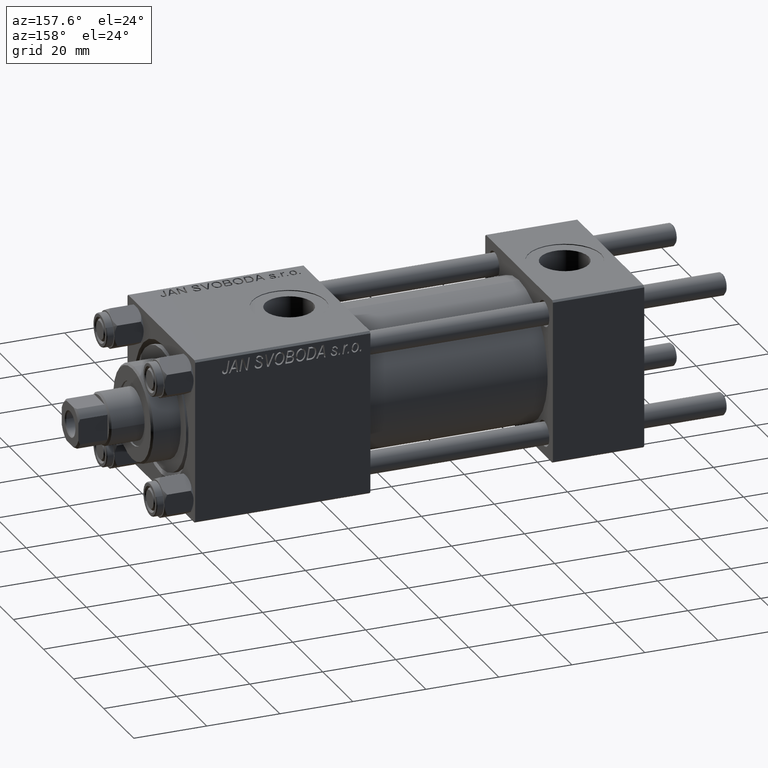
[diagram: clean part render]
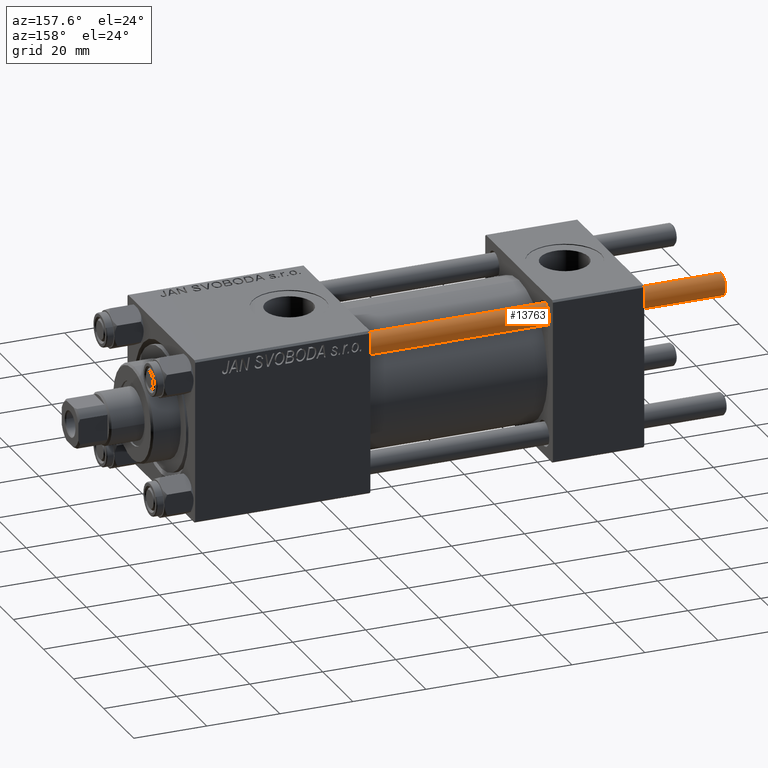
[diagram: same view with one face highlighted and labeled with its STEP entity id]
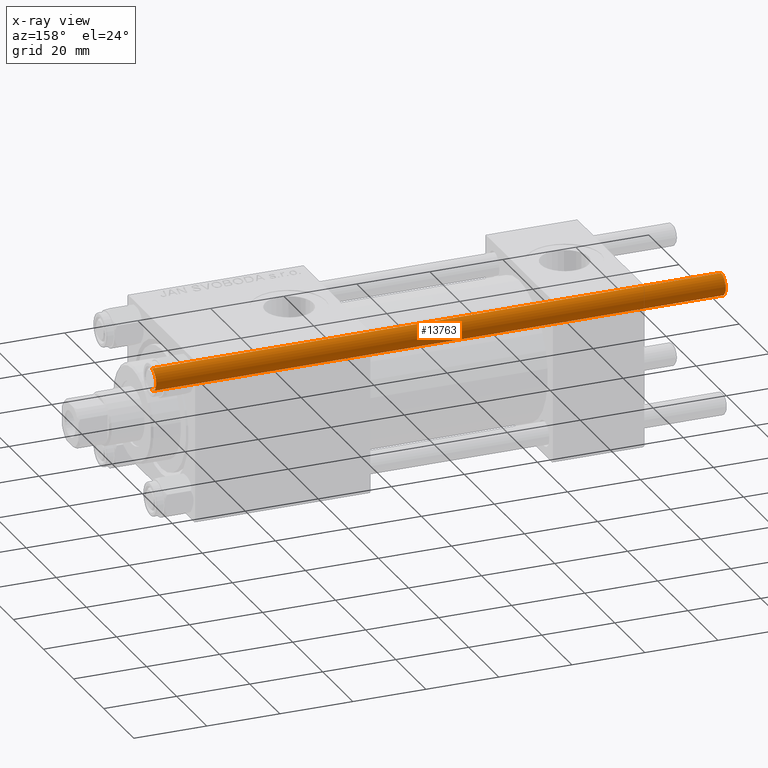
[diagram: x-ray of the same camera — body ghosted, the highlighted face saturated]
A machine part, auxiliary view. The second image highlights one B-rep face of the part: STEP entity #13763.
The next image is the same camera in x-ray: the body ghosted, the highlighted face saturated — about 0% of this face is hidden behind the body in this view.
In plain terms, the highlighted cylindrical surface (edge-blend (fillet) strip) has radius 3 mm, axis along (-1, -0, -0).
Its self-contained STEP definition (entity closure, byte-faithful):
#3506 = DIRECTION ( 'NONE',  ( -1.000000000000000000, 0.000000000000000000, 0.000000000000000000 ) ) ;
#4182 = EDGE_CURVE ( 'NONE', #15021, #20039, #13060, .T. ) ;
#4786 = DIRECTION ( 'NONE',  ( -0.000000000000000000, -0.000000000000000000, 1.000000000000000000 ) ) ;
#9176 = EDGE_CURVE ( 'NONE', #25288, #15021, #40603, .T. ) ;
#10661 = DIRECTION ( 'NONE',  ( 0.000000000000000000, 0.000000000000000000, -1.000000000000000000 ) ) ;
#13060 = LINE ( 'NONE', #29077, #20581 ) ;
#13763 = ADVANCED_FACE ( 'NONE', ( #47843 ), #43904, .T. ) ;
#13927 = EDGE_CURVE ( 'NONE', #20039, #43596, #29737, .T. ) ;
#15021 = VERTEX_POINT ( 'NONE', #22636 ) ;
#20039 = VERTEX_POINT ( 'NONE', #37996 ) ;
#20581 = VECTOR ( 'NONE', #37993, 1000.000000000000000 ) ;
#21593 = EDGE_LOOP ( 'NONE', ( #31031, #36655, #40864, #39213 ) ) ;
#22636 = CARTESIAN_POINT ( 'NONE',  ( 3.000000000000000444, 3.673940397442060361E-16, 156.5000000000000284 ) ) ;
#23060 = CARTESIAN_POINT ( 'NONE',  ( -3.000000000000000444, 0.000000000000000000, 157.0000000000000000 ) ) ;
#23910 = AXIS2_PLACEMENT_3D ( 'NONE', #25251, #4786, #41247 ) ;
#25251 = CARTESIAN_POINT ( 'NONE',  ( 0.000000000000000000, 0.000000000000000000, 0.4999999999999726885 ) ) ;
#25288 = VERTEX_POINT ( 'NONE', #50839 ) ;
#26413 = AXIS2_PLACEMENT_3D ( 'NONE', #35017, #39469, #3506 ) ;
#29077 = CARTESIAN_POINT ( 'NONE',  ( 3.000000000000000444, 3.673940397442060361E-16, 157.0000000000000000 ) ) ;
#29581 = VECTOR ( 'NONE', #42203, 1000.000000000000000 ) ;
#29737 = CIRCLE ( 'NONE', #23910, 3.000000000000000444 ) ;
#29888 = LINE ( 'NONE', #23060, #29581 ) ;
#31031 = ORIENTED_EDGE ( 'NONE', *, *, #9176, .T. ) ;
#35017 = CARTESIAN_POINT ( 'NONE',  ( 0.000000000000000000, 0.000000000000000000, 157.0000000000000000 ) ) ;
#35574 = AXIS2_PLACEMENT_3D ( 'NONE', #51055, #10661, #42672 ) ;
#36655 = ORIENTED_EDGE ( 'NONE', *, *, #4182, .T. ) ;
#37993 = DIRECTION ( 'NONE',  ( -0.000000000000000000, -0.000000000000000000, -1.000000000000000000 ) ) ;
#37996 = CARTESIAN_POINT ( 'NONE',  ( 3.000000000000000444, 3.673940397442060361E-16, 0.4999999999999726885 ) ) ;
#38079 = CARTESIAN_POINT ( 'NONE',  ( -3.000000000000000444, 0.000000000000000000, 0.4999999999999726885 ) ) ;
#39213 = ORIENTED_EDGE ( 'NONE', *, *, #47730, .F. ) ;
#39469 = DIRECTION ( 'NONE',  ( -0.000000000000000000, -0.000000000000000000, -1.000000000000000000 ) ) ;
#40603 = CIRCLE ( 'NONE', #35574, 3.000000000000000444 ) ;
#40864 = ORIENTED_EDGE ( 'NONE', *, *, #13927, .T. ) ;
#41247 = DIRECTION ( 'NONE',  ( 1.000000000000000000, 0.000000000000000000, 0.000000000000000000 ) ) ;
#42203 = DIRECTION ( 'NONE',  ( -0.000000000000000000, -0.000000000000000000, -1.000000000000000000 ) ) ;
#42672 = DIRECTION ( 'NONE',  ( 1.000000000000000000, 0.000000000000000000, 0.000000000000000000 ) ) ;
#43596 = VERTEX_POINT ( 'NONE', #38079 ) ;
#43904 = CYLINDRICAL_SURFACE ( 'NONE', #26413, 3.000000000000000444 ) ;
#47730 = EDGE_CURVE ( 'NONE', #25288, #43596, #29888, .T. ) ;
#47843 = FACE_OUTER_BOUND ( 'NONE', #21593, .T. ) ;
#50839 = CARTESIAN_POINT ( 'NONE',  ( -3.000000000000000444, 0.000000000000000000, 156.5000000000000284 ) ) ;
#51055 = CARTESIAN_POINT ( 'NONE',  ( 0.000000000000000000, 0.000000000000000000, 156.5000000000000284 ) ) ;